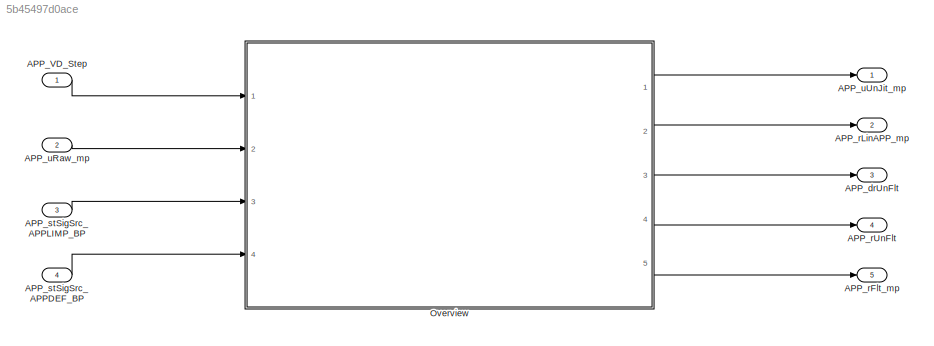
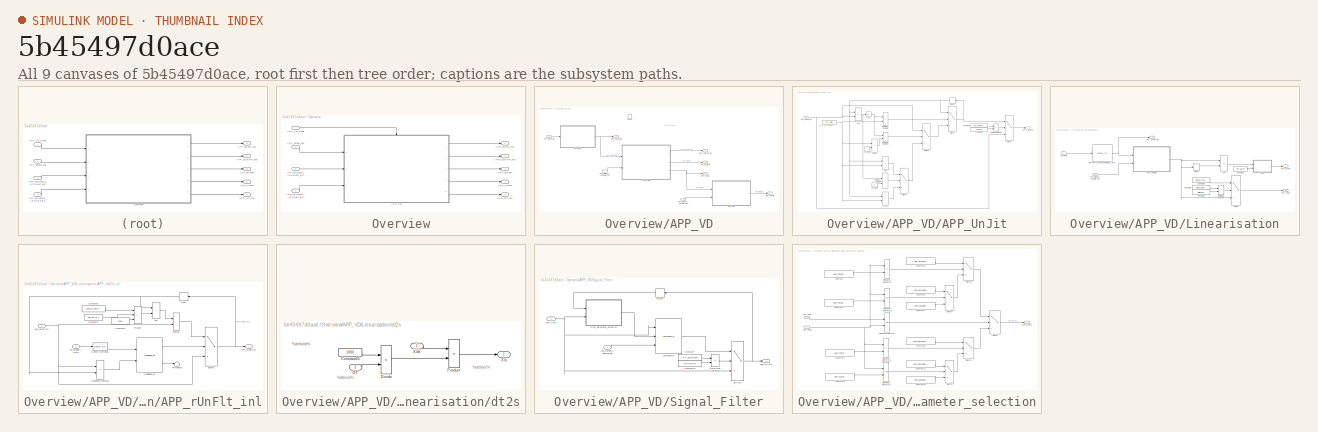
[diagram: thumbnail index - all 9 canvases of the model, root first then tree order]
MODEL slx_5b45497d0ace
KIND model
CONFIG AbsTol = auto
CONFIG EnableMultiTasking = off
CONFIG FixedStep = 0.001
CONFIG MaxStep = auto
CONFIG MinStep = auto
CONFIG RelTol = 1e-3
CONFIG SampleTimeConstraint = Unconstrained
CONFIG SolverName = FixedStepDiscrete
CONFIG StartTime = 0.0
CONFIG StopTime = Inf
WORKSPACE source: mxarray member
WORKSPACE APP_VD_DT = 10
BLOCK [Inport] APP_VD_Step
  OutputFunctionCall = on
BLOCK [Outport] APP_drUnFlt
  Description = Acceleration pedal position gradient of unfilterd value
  OutDataTypeStr = Percent_s
  OutMax = 200
  OutMin = -200
  Port = 3
  PortDimensions = [1 1]
  Unit = %/ms
BLOCK [Outport] APP_rFlt_mp
  Description = Acceleration pedal position filtered value
  OutDataTypeStr = Percent
  OutMax = 100
  OutMin = 0
  Port = 5
  PortDimensions = [1 1]
  Unit = %
BLOCK [Outport] APP_rLinAPP_mp
  Description = Linearisation ratio of accelerator pedal
  OutDataTypeStr = Percent
  OutMax = 100
  OutMin = 0
  Port = 2
  PortDimensions = [1 1]
  Unit = %
BLOCK [Outport] APP_rUnFlt
  Description = Unfiltered APP value
  OutDataTypeStr = Percent
  OutMax = 100
  OutMin = 0
  Port = 4
  PortDimensions = [1 1]
  Unit = %
BLOCK [Inport] APP_stSigSrc_APPDEF_BP
  Description = both the sensors are defective. Use the default value
  OutDataTypeStr = boolean
  OutMax = 1
  OutMin = 0
  Port = 4
  PortDimensions = [1 1]
BLOCK [Inport] APP_stSigSrc_APPLIMP_BP
  Description = Substitute operation active, accelerator pedal sensor value and accelerator pedal sensor increase are limited
  OutDataTypeStr = boolean
  OutMax = 1
  OutMin = 0
  Port = 3
  PortDimensions = [1 1]
BLOCK [Inport] APP_uRaw_mp
  Description = Acceleration pedal position raw value
  OutDataTypeStr = Volt_mV1
  OutMax = 5000
  OutMin = 0
  Port = 2
  PortDimensions = [1 1]
  Unit = mv
BLOCK [Outport] APP_uUnJit_mp
  Description = Acceleration pedal position unjittered value
  OutDataTypeStr = Volt_mV1
  OutMax = 5000
  OutMin = 0
  PortDimensions = [1 1]
  Unit = mv
BLOCK [SubSystem] Overview
  Ports = [4, 5]
  RequestExecContextInheritance = off
BLOCK [SubSystem] Overview/APP_VD
  Ports = [3, 5, 0, 1]
  RequestExecContextInheritance = off
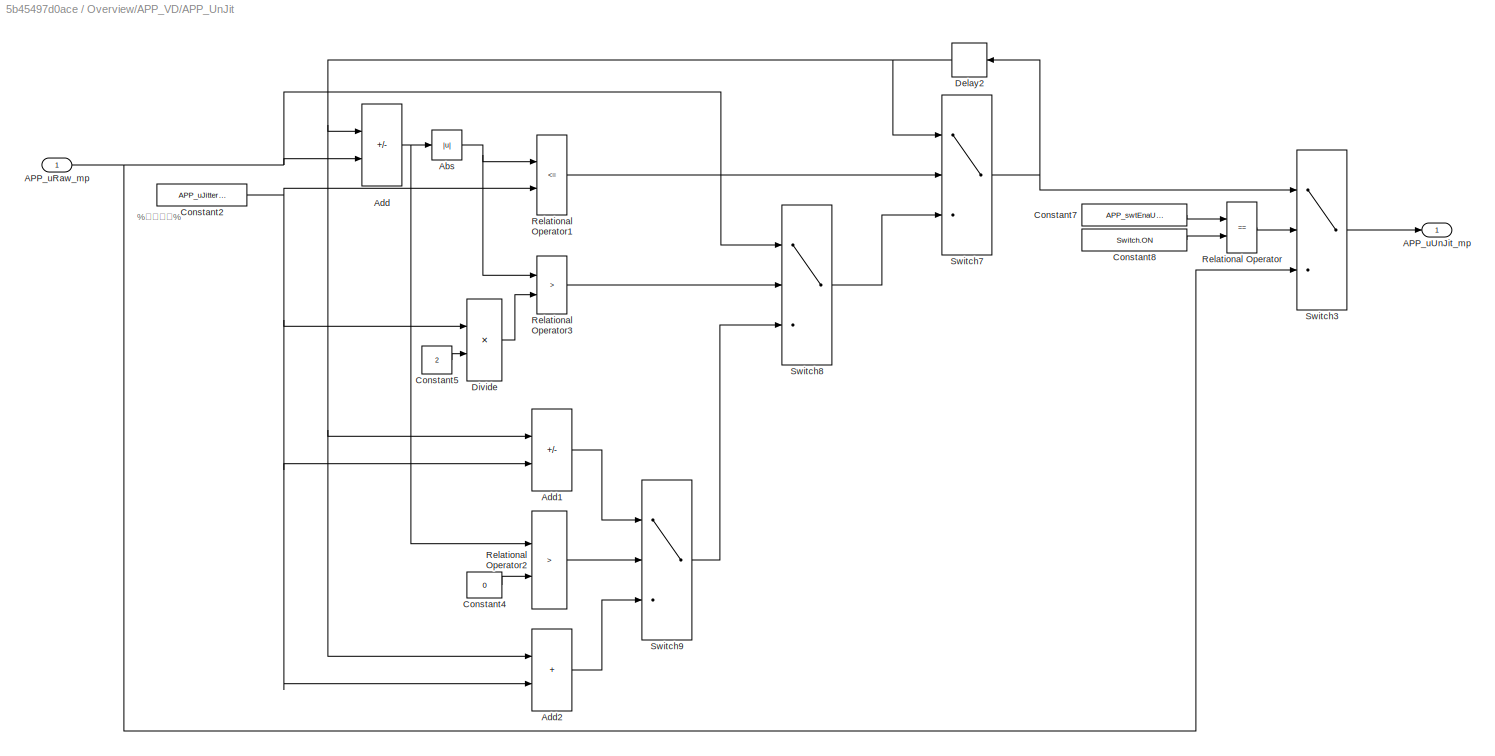
BLOCK [SubSystem] Overview/APP_VD/APP_UnJit
  Ports = [1, 1]
  RequestExecContextInheritance = off
BLOCK [Inport] Overview/APP_VD/APP_UnJit/APP_uRaw_mp
BLOCK [Outport] Overview/APP_VD/APP_UnJit/APP_uUnJit_mp
  VectorParamsAs1DForOutWhenUnconnected = off
BLOCK [Abs] Overview/APP_VD/APP_UnJit/Abs
  OutDataTypeStr = Inherit: Inherit via back propagation
  SaturateOnIntegerOverflow = off
BLOCK [Sum] Overview/APP_VD/APP_UnJit/Add
  IconShape = rectangular
  InputSameDT = on
  Inputs = +-
  Ports = [2, 1]
BLOCK [Sum] Overview/APP_VD/APP_UnJit/Add1
  IconShape = rectangular
  InputSameDT = on
  Inputs = +-
  Ports = [2, 1]
BLOCK [Sum] Overview/APP_VD/APP_UnJit/Add2
  IconShape = rectangular
  InputSameDT = on
  Ports = [2, 1]
BLOCK [Constant] Overview/APP_VD/APP_UnJit/Constant2
  Value = APP_uJitter_C
BLOCK [Constant] Overview/APP_VD/APP_UnJit/Constant4
  OutDataTypeStr = Inherit: Inherit via back propagation
  Value = 0
BLOCK [Constant] Overview/APP_VD/APP_UnJit/Constant5
  OutDataTypeStr = Inherit: Inherit via back propagation
  Value = 2
BLOCK [Constant] Overview/APP_VD/APP_UnJit/Constant7
  Value = APP_swtEnaUnJit_C
BLOCK [Constant] Overview/APP_VD/APP_UnJit/Constant8
  OutDataTypeStr = Inherit: Inherit via back propagation
  Value = Switch.ON
BLOCK [Delay] Overview/APP_VD/APP_UnJit/Delay2
  DelayLength = 1
  InitialCondition = 0
  InputPortMap = u0
  Ports = [1, 1]
BLOCK [Product] Overview/APP_VD/APP_UnJit/Divide
  Inputs = **
  OutDataTypeStr = Inherit: Inherit via back propagation
  Ports = [2, 1]
BLOCK [RelationalOperator] Overview/APP_VD/APP_UnJit/Relational Operator
  Operator = ==
  OutDataTypeStr = boolean
  Ports = [2, 1]
  RndMeth = Simplest
BLOCK [RelationalOperator] Overview/APP_VD/APP_UnJit/Relational Operator1
  Operator = <=
  OutDataTypeStr = boolean
  Ports = [2, 1]
BLOCK [RelationalOperator] Overview/APP_VD/APP_UnJit/Relational Operator2
  Operator = >
  OutDataTypeStr = boolean
  Ports = [2, 1]
BLOCK [RelationalOperator] Overview/APP_VD/APP_UnJit/Relational Operator3
  Operator = >
  OutDataTypeStr = boolean
  Ports = [2, 1]
BLOCK [Switch] Overview/APP_VD/APP_UnJit/Switch3
  Criteria = u2 ~= 0
  SaturateOnIntegerOverflow = off
BLOCK [Switch] Overview/APP_VD/APP_UnJit/Switch7
  Criteria = u2 ~= 0
  SaturateOnIntegerOverflow = off
BLOCK [Switch] Overview/APP_VD/APP_UnJit/Switch8
  Criteria = u2 ~= 0
  SaturateOnIntegerOverflow = off
BLOCK [Switch] Overview/APP_VD/APP_UnJit/Switch9
  Criteria = u2 ~= 0
  SaturateOnIntegerOverflow = off
BLOCK [Outport] Overview/APP_VD/APP_drUnFlt
  Port = 3
  Tag = %/s
  VectorParamsAs1DForOutWhenUnconnected = off
BLOCK [Outport] Overview/APP_VD/APP_rFlt_mp
  Port = 5
  Tag = %
  VectorParamsAs1DForOutWhenUnconnected = off
BLOCK [Outport] Overview/APP_VD/APP_rLinAPP_mp
  Port = 2
  Tag = %
  VectorParamsAs1DForOutWhenUnconnected = off
BLOCK [Outport] Overview/APP_VD/APP_rUnFlt
  Port = 4
  Tag = %
  VectorParamsAs1DForOutWhenUnconnected = off
BLOCK [Inport] Overview/APP_VD/APP_stSigSrc_APPDEF_BP
  Port = 3
BLOCK [Inport] Overview/APP_VD/APP_stSigSrc_APPLIMP_BP
  Port = 2
BLOCK [Inport] Overview/APP_VD/APP_uRaw_mp
  Tag = mv
BLOCK [Outport] Overview/APP_VD/APP_uUnJit_mp
  Tag = mv
  VectorParamsAs1DForOutWhenUnconnected = off
BLOCK [SubSystem] Overview/APP_VD/Linearisation
  Ports = [2, 3]
  RequestExecContextInheritance = off
BLOCK [Outport] Overview/APP_VD/Linearisation/APP_drUnFlt
  Port = 2
  Tag = %%
  VectorParamsAs1DForOutWhenUnconnected = off
BLOCK [Outport] Overview/APP_VD/Linearisation/APP_rLinAPP_mp
  Tag = %%
  VectorParamsAs1DForOutWhenUnconnected = off
BLOCK [Outport] Overview/APP_VD/Linearisation/APP_rUnFlt
  Port = 3
  Tag = %%
  VectorParamsAs1DForOutWhenUnconnected = off
BLOCK [SubSystem] Overview/APP_VD/Linearisation/APP_rUnFlt_inl
  Ports = [2, 1]
  RequestExecContextInheritance = off
BLOCK [Inport] Overview/APP_VD/Linearisation/APP_rUnFlt_inl/APP_rLinAPP_mp
BLOCK [Outport] Overview/APP_VD/Linearisation/APP_rUnFlt_inl/APP_rUnFlt_mp
  VectorParamsAs1DForOutWhenUnconnected = off
BLOCK [Inport] Overview/APP_VD/Linearisation/APP_rUnFlt_inl/APP_stSigSrc_LIMP
  Port = 2
BLOCK [Sum] Overview/APP_VD/Linearisation/APP_rUnFlt_inl/Add
  IconShape = rectangular
  InputSameDT = on
  Ports = [2, 1]
BLOCK [Constant] Overview/APP_VD/Linearisation/APP_rUnFlt_inl/Constant1
  OutDataTypeStr = Inherit: Inherit via back propagation
  Value = APP_VD_DT
BLOCK [Constant] Overview/APP_VD/Linearisation/APP_rUnFlt_inl/Constant2
  OutDataTypeStr = int16
  Value = 1000
BLOCK [Constant] Overview/APP_VD/Linearisation/APP_rUnFlt_inl/Constant6
  Value = APP_drLinRmp_C
BLOCK [Delay] Overview/APP_VD/Linearisation/APP_rUnFlt_inl/Delay
  DelayLength = 1
  InitialCondition = 0
  InputPortMap = u0
  Ports = [1, 1]
BLOCK [Reference] Overview/APP_VD/Linearisation/APP_rUnFlt_inl/Detect Decrease  REF=simulink/Logic and Bit
Operations/Detect
Decrease
  Ports = [1, 1]
  SourceBlock = simulink/Logic and Bit\nOperations/Detect\nDecrease
  SourceProductBaseCode = SL
  SourceType = Detect Decrease
BLOCK [MinMax] Overview/APP_VD/Linearisation/APP_rUnFlt_inl/MinMax
  Inputs = 2
  Ports = [2, 1]
BLOCK [Product] Overview/APP_VD/Linearisation/APP_rUnFlt_inl/Product
  Inputs = **/
  OutDataTypeStr = Inherit: Inherit via back propagation
  Ports = [3, 1]
BLOCK [Reference] Overview/APP_VD/Linearisation/APP_rUnFlt_inl/RSFilpFlop_Sp  REF=sllib/Logical symbols/RSFilpFlop_Sp  (lib defined in slx_2b0aa6d284ff)
  AttributesFormatString = State Initial=%<InitialCondition>
  Ports = [2, 2]
  SourceBlock = sllib/Logical symbols/RSFilpFlop_Sp
  SourceProductName = sllib
  SourceType = RSFlipFlop_Sp
BLOCK [RelationalOperator] Overview/APP_VD/Linearisation/APP_rUnFlt_inl/Relational Operator
  InputSameDT = off
  Operator = <=
  OutDataTypeStr = boolean
  Ports = [2, 1]
  RndMeth = Simplest
BLOCK [Switch] Overview/APP_VD/Linearisation/APP_rUnFlt_inl/Switch
  Criteria = u2 ~= 0
  SaturateOnIntegerOverflow = off
BLOCK [Terminator] Overview/APP_VD/Linearisation/APP_rUnFlt_inl/Terminator
BLOCK [Inport] Overview/APP_VD/Linearisation/APP_stSigSrc_APPLIMP_BP
  Port = 2
  Tag = -
BLOCK [Sum] Overview/APP_VD/Linearisation/Add3
  IconShape = rectangular
  InputSameDT = on
  Inputs = +-
  Ports = [2, 1]
BLOCK [Constant] Overview/APP_VD/Linearisation/Constant1
  OutDataTypeStr = Inherit: Inherit via back propagation
  Value = APP_VD_DT
BLOCK [Constant] Overview/APP_VD/Linearisation/Constant6
  Value = SigTst_swtAPP_C
BLOCK [Constant] Overview/APP_VD/Linearisation/Constant8
  Value = SigTst_rAPP_C
BLOCK [Constant] Overview/APP_VD/Linearisation/Constant9
  OutDataTypeStr = Inherit: Inherit via back propagation
  Value = Switch.ON
BLOCK [Delay] Overview/APP_VD/Linearisation/Delay
  DelayLength = 1
  InitialCondition = 0
  InputPortMap = u0
  Ports = [1, 1]
BLOCK [Lookup_n-D] Overview/APP_VD/Linearisation/MoFAPP_rLinAPPCURCalMsgA_CUR
  BeginIndexSearchUsingPreviousIndexResult = on
  BreakpointsForDimension1 = MoFAPP_rLinAPPCURCalMsgA_CURX
  ExtrapMethod = Clip
  IndexSearchMethod = Linear search
  InputPortMap = u0
  InputSameDT = off
  InternalRulePriority = Speed
  NumberOfTableDimensions = 1
  OutDataTypeStr = Inherit: Inherit via back propagation
  Ports = [1, 1]
  SaturateOnIntegerOverflow = on
  Table = MoFAPP_rLinAPPCURCalMsgA_CUR
  UseLastTableValue = on
  UseOneInputPortForAllInputData = on
BLOCK [RelationalOperator] Overview/APP_VD/Linearisation/Relational Operator4
  Operator = ==
  OutDataTypeStr = boolean
  Ports = [2, 1]
  RndMeth = Simplest
BLOCK [Switch] Overview/APP_VD/Linearisation/Switch
  Criteria = u2 ~= 0
  SaturateOnIntegerOverflow = off
BLOCK [SubSystem] Overview/APP_VD/Linearisation/dt2s
  Ports = [2, 1]
  RequestExecContextInheritance = off
BLOCK [Constant] Overview/APP_VD/Linearisation/dt2s/Constant21
  OutDataTypeStr = int16
  Value = 1000
BLOCK [Inport] Overview/APP_VD/Linearisation/dt2s/DT
  Port = 2
BLOCK [Product] Overview/APP_VD/Linearisation/dt2s/Divide
  Inputs = */
  OutDataTypeStr = int16
  Ports = [2, 1]
  RndMeth = Round
  SaturateOnIntegerOverflow = on
BLOCK [Product] Overview/APP_VD/Linearisation/dt2s/Product
  OutDataTypeStr = Inherit: Inherit via back propagation
  Ports = [2, 1]
  RndMeth = Round
  SaturateOnIntegerOverflow = on
BLOCK [Inport] Overview/APP_VD/Linearisation/dt2s/X//dt
BLOCK [Outport] Overview/APP_VD/Linearisation/dt2s/X//s
  VectorParamsAs1DForOutWhenUnconnected = off
BLOCK [Inport] Overview/APP_VD/Linearisation/uUnJit_mp
BLOCK [SubSystem] Overview/APP_VD/Signal_Filter
  Ports = [2, 1]
  RequestExecContextInheritance = off
BLOCK [Outport] Overview/APP_VD/Signal_Filter/APP_rFlt_mp
  Tag = %%
  VectorParamsAs1DForOutWhenUnconnected = off
BLOCK [Inport] Overview/APP_VD/Signal_Filter/APP_rUnFlt
BLOCK [Inport] Overview/APP_VD/Signal_Filter/APP_stSigSrc_APPDEF_BP
  Port = 2
  Tag = -
BLOCK [Constant] Overview/APP_VD/Signal_Filter/Constant10
  OutDataTypeStr = Inherit: Inherit via back propagation
  Value = Switch.ON
BLOCK [Constant] Overview/APP_VD/Signal_Filter/Constant7
  Value = APP_swtEnaFlt_C
BLOCK [Delay] Overview/APP_VD/Signal_Filter/Delay1
  DelayLength = 1
  InitialCondition = 0
  InputPortMap = u0
  Ports = [1, 1]
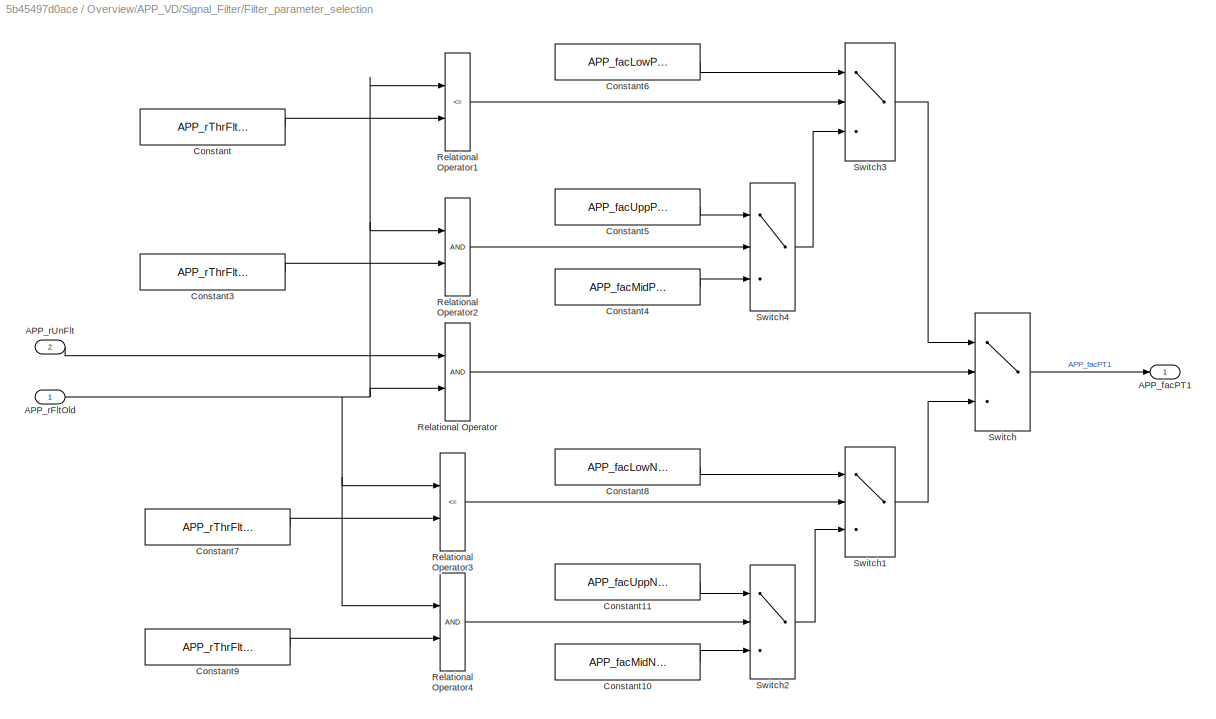
BLOCK [SubSystem] Overview/APP_VD/Signal_Filter/Filter_parameter_selection
  Ports = [2, 1]
  RequestExecContextInheritance = off
BLOCK [Outport] Overview/APP_VD/Signal_Filter/Filter_parameter_selection/APP_facPT1
  VectorParamsAs1DForOutWhenUnconnected = off
BLOCK [Inport] Overview/APP_VD/Signal_Filter/Filter_parameter_selection/APP_rFltOld
BLOCK [Inport] Overview/APP_VD/Signal_Filter/Filter_parameter_selection/APP_rUnFlt
  Port = 2
BLOCK [Constant] Overview/APP_VD/Signal_Filter/Filter_parameter_selection/Constant
  Value = APP_rThrFltLowPos_C
BLOCK [Constant] Overview/APP_VD/Signal_Filter/Filter_parameter_selection/Constant10
  Value = APP_facMidNegPT1_C
BLOCK [Constant] Overview/APP_VD/Signal_Filter/Filter_parameter_selection/Constant11
  Value = APP_facUppNegPT1_C
BLOCK [Constant] Overview/APP_VD/Signal_Filter/Filter_parameter_selection/Constant3
  Value = APP_rThrFltMidPos_C
BLOCK [Constant] Overview/APP_VD/Signal_Filter/Filter_parameter_selection/Constant4
  Value = APP_facMidPosPT1_C
BLOCK [Constant] Overview/APP_VD/Signal_Filter/Filter_parameter_selection/Constant5
  Value = APP_facUppPosPT1_C
BLOCK [Constant] Overview/APP_VD/Signal_Filter/Filter_parameter_selection/Constant6
  Value = APP_facLowPosPT1_C
BLOCK [Constant] Overview/APP_VD/Signal_Filter/Filter_parameter_selection/Constant7
  Value = APP_rThrFltLowNeg_C
BLOCK [Constant] Overview/APP_VD/Signal_Filter/Filter_parameter_selection/Constant8
  Value = APP_facLowNegPT1_C
BLOCK [Constant] Overview/APP_VD/Signal_Filter/Filter_parameter_selection/Constant9
  Value = APP_rThrFltMidNeg_C
BLOCK [RelationalOperator] Overview/APP_VD/Signal_Filter/Filter_parameter_selection/Relational Operator
  InputSameDT = off
  OutDataTypeStr = boolean
  Ports = [2, 1]
BLOCK [RelationalOperator] Overview/APP_VD/Signal_Filter/Filter_parameter_selection/Relational Operator1
  InputSameDT = off
  Operator = <=
  OutDataTypeStr = boolean
  Ports = [2, 1]
BLOCK [RelationalOperator] Overview/APP_VD/Signal_Filter/Filter_parameter_selection/Relational Operator2
  InputSameDT = off
  OutDataTypeStr = boolean
  Ports = [2, 1]
BLOCK [RelationalOperator] Overview/APP_VD/Signal_Filter/Filter_parameter_selection/Relational Operator3
  InputSameDT = off
  Operator = <=
  OutDataTypeStr = boolean
  Ports = [2, 1]
BLOCK [RelationalOperator] Overview/APP_VD/Signal_Filter/Filter_parameter_selection/Relational Operator4
  InputSameDT = off
  OutDataTypeStr = boolean
  Ports = [2, 1]
BLOCK [Switch] Overview/APP_VD/Signal_Filter/Filter_parameter_selection/Switch
  Criteria = u2 ~= 0
  SaturateOnIntegerOverflow = off
  Threshold = 1
BLOCK [Switch] Overview/APP_VD/Signal_Filter/Filter_parameter_selection/Switch1
  Criteria = u2 ~= 0
  SaturateOnIntegerOverflow = off
  Threshold = 1
BLOCK [Switch] Overview/APP_VD/Signal_Filter/Filter_parameter_selection/Switch2
  Criteria = u2 ~= 0
  SaturateOnIntegerOverflow = off
  Threshold = 1
BLOCK [Switch] Overview/APP_VD/Signal_Filter/Filter_parameter_selection/Switch3
  Criteria = u2 ~= 0
  SaturateOnIntegerOverflow = off
  Threshold = 1
BLOCK [Switch] Overview/APP_VD/Signal_Filter/Filter_parameter_selection/Switch4
  Criteria = u2 ~= 0
  SaturateOnIntegerOverflow = off
  Threshold = 1
BLOCK [Reference] Overview/APP_VD/Signal_Filter/LowPassK_R  REF=sllib/Transfer Functions/LowPassK_R  (lib defined in slx_2b0aa6d284ff)
  Ports = [3, 1]
  SourceBlock = sllib/Transfer Functions/LowPassK_R
  SourceProductName = sllib
  SourceType = LowPassK
BLOCK [RelationalOperator] Overview/APP_VD/Signal_Filter/Relational Operator5
  Operator = ==
  OutDataTypeStr = boolean
  Ports = [2, 1]
  RndMeth = Simplest
BLOCK [Switch] Overview/APP_VD/Signal_Filter/Switch1
  Criteria = u2 ~= 0
  SaturateOnIntegerOverflow = off
BLOCK [TriggerPort] Overview/APP_VD/Trigger
  PortDimensions = 1
  Ports = []
  StatesWhenEnabling = held
  TriggerType = function-call
  VariantControl = Variant
BLOCK [Inport] Overview/APP_VD_Step
BLOCK [Outport] Overview/APP_drUnFlt
  Port = 3
  VectorParamsAs1DForOutWhenUnconnected = off
BLOCK [Outport] Overview/APP_rFlt_mp
  Port = 5
  VectorParamsAs1DForOutWhenUnconnected = off
BLOCK [Outport] Overview/APP_rLinAPP_mp
  Port = 2
  VectorParamsAs1DForOutWhenUnconnected = off
BLOCK [Outport] Overview/APP_rUnFlt
  Port = 4
  VectorParamsAs1DForOutWhenUnconnected = off
BLOCK [Inport] Overview/APP_stSigSrc_APPDEF_BP
  Port = 4
BLOCK [Inport] Overview/APP_stSigSrc_APPLIMP_BP
  Port = 3
BLOCK [Inport] Overview/APP_uRaw_mp
  Port = 2
BLOCK [Outport] Overview/APP_uUnJit_mp
  VectorParamsAs1DForOutWhenUnconnected = off
ANNOTATION Overview/APP_VD: %踏板信号获取和滤波%
ANNOTATION Overview/APP_VD/APP_UnJit: %振动阀值%
ANNOTATION Overview/APP_VD/Linearisation/dt2s: %delta/dt%
ANNOTATION Overview/APP_VD/Linearisation/dt2s: %delta/s%
ANNOTATION Overview/APP_VD/Linearisation/dt2s: %dt(ms)%
LINE APP_VD_Step:1 -> Overview:1
LINE APP_stSigSrc_APPDEF_BP:1 -> Overview:4
LINE APP_stSigSrc_APPLIMP_BP:1 -> Overview:3
LINE APP_uRaw_mp:1 -> Overview:2
NET Overview/APP_VD/APP_UnJit/APP_uRaw_mp:1 -> Overview/APP_VD/APP_UnJit/Add:2, Overview/APP_VD/APP_UnJit/Switch3:3, Overview/APP_VD/APP_UnJit/Switch8:1
NET Overview/APP_VD/APP_UnJit/Abs:1 -> Overview/APP_VD/APP_UnJit/Relational Operator1:1, Overview/APP_VD/APP_UnJit/Relational Operator3:1
LINE Overview/APP_VD/APP_UnJit/Add1:1 -> Overview/APP_VD/APP_UnJit/Switch9:1
LINE Overview/APP_VD/APP_UnJit/Add2:1 -> Overview/APP_VD/APP_UnJit/Switch9:3
NET Overview/APP_VD/APP_UnJit/Add:1 -> Overview/APP_VD/APP_UnJit/Abs:1, Overview/APP_VD/APP_UnJit/Relational Operator2:1
NET Overview/APP_VD/APP_UnJit/Constant2:1 -> Overview/APP_VD/APP_UnJit/Add1:2, Overview/APP_VD/APP_UnJit/Add2:2, Overview/APP_VD/APP_UnJit/Divide:1, Overview/APP_VD/APP_UnJit/Relational Operator1:2
LINE Overview/APP_VD/APP_UnJit/Constant4:1 -> Overview/APP_VD/APP_UnJit/Relational Operator2:2
LINE Overview/APP_VD/APP_UnJit/Constant5:1 -> Overview/APP_VD/APP_UnJit/Divide:2
LINE Overview/APP_VD/APP_UnJit/Constant7:1 -> Overview/APP_VD/APP_UnJit/Relational Operator:1
LINE Overview/APP_VD/APP_UnJit/Constant8:1 -> Overview/APP_VD/APP_UnJit/Relational Operator:2
NET Overview/APP_VD/APP_UnJit/Delay2:1 -> Overview/APP_VD/APP_UnJit/Add1:1, Overview/APP_VD/APP_UnJit/Add2:1, Overview/APP_VD/APP_UnJit/Add:1, Overview/APP_VD/APP_UnJit/Switch7:1
LINE Overview/APP_VD/APP_UnJit/Divide:1 -> Overview/APP_VD/APP_UnJit/Relational Operator3:2
LINE Overview/APP_VD/APP_UnJit/Relational Operator1:1 -> Overview/APP_VD/APP_UnJit/Switch7:2
LINE Overview/APP_VD/APP_UnJit/Relational Operator2:1 -> Overview/APP_VD/APP_UnJit/Switch9:2
LINE Overview/APP_VD/APP_UnJit/Relational Operator3:1 -> Overview/APP_VD/APP_UnJit/Switch8:2
LINE Overview/APP_VD/APP_UnJit/Relational Operator:1 -> Overview/APP_VD/APP_UnJit/Switch3:2
LINE Overview/APP_VD/APP_UnJit/Switch3:1 -> Overview/APP_VD/APP_UnJit/APP_uUnJit_mp:1
NET Overview/APP_VD/APP_UnJit/Switch7:1 -> Overview/APP_VD/APP_UnJit/Delay2:1, Overview/APP_VD/APP_UnJit/Switch3:1
LINE Overview/APP_VD/APP_UnJit/Switch8:1 -> Overview/APP_VD/APP_UnJit/Switch7:3
LINE Overview/APP_VD/APP_UnJit/Switch9:1 -> Overview/APP_VD/APP_UnJit/Switch8:3
NET Overview/APP_VD/APP_UnJit:1 -> Overview/APP_VD/APP_uUnJit_mp:1, Overview/APP_VD/Linearisation:1
LINE Overview/APP_VD/APP_stSigSrc_APPDEF_BP:1 -> Overview/APP_VD/Signal_Filter:2
LINE Overview/APP_VD/APP_stSigSrc_APPLIMP_BP:1 -> Overview/APP_VD/Linearisation:2
LINE Overview/APP_VD/APP_uRaw_mp:1 -> Overview/APP_VD/APP_UnJit:1
NET Overview/APP_VD/Linearisation/APP_rUnFlt_inl/APP_rLinAPP_mp:1 -> Overview/APP_VD/Linearisation/APP_rUnFlt_inl/MinMax:2, Overview/APP_VD/Linearisation/APP_rUnFlt_inl/Relational Operator:1, Overview/APP_VD/Linearisation/APP_rUnFlt_inl/Switch:3
LINE Overview/APP_VD/Linearisation/APP_rUnFlt_inl/APP_stSigSrc_LIMP:1 -> Overview/APP_VD/Linearisation/APP_rUnFlt_inl/Detect Decrease:1
LINE Overview/APP_VD/Linearisation/APP_rUnFlt_inl/Add:1 -> Overview/APP_VD/Linearisation/APP_rUnFlt_inl/MinMax:1
LINE Overview/APP_VD/Linearisation/APP_rUnFlt_inl/Constant1:1 -> Overview/APP_VD/Linearisation/APP_rUnFlt_inl/Product:2
LINE Overview/APP_VD/Linearisation/APP_rUnFlt_inl/Constant2:1 -> Overview/APP_VD/Linearisation/APP_rUnFlt_inl/Product:3
LINE Overview/APP_VD/Linearisation/APP_rUnFlt_inl/Constant6:1 -> Overview/APP_VD/Linearisation/APP_rUnFlt_inl/Product:1
NET Overview/APP_VD/Linearisation/APP_rUnFlt_inl/Delay:1 -> Overview/APP_VD/Linearisation/APP_rUnFlt_inl/Add:1, Overview/APP_VD/Linearisation/APP_rUnFlt_inl/Relational Operator:2
LINE Overview/APP_VD/Linearisation/APP_rUnFlt_inl/Detect Decrease:1 -> Overview/APP_VD/Linearisation/APP_rUnFlt_inl/RSFilpFlop_Sp:1
LINE Overview/APP_VD/Linearisation/APP_rUnFlt_inl/MinMax:1 -> Overview/APP_VD/Linearisation/APP_rUnFlt_inl/Switch:1
LINE Overview/APP_VD/Linearisation/APP_rUnFlt_inl/Product:1 -> Overview/APP_VD/Linearisation/APP_rUnFlt_inl/Add:2
LINE Overview/APP_VD/Linearisation/APP_rUnFlt_inl/RSFilpFlop_Sp:1 -> Overview/APP_VD/Linearisation/APP_rUnFlt_inl/Switch:2
LINE Overview/APP_VD/Linearisation/APP_rUnFlt_inl/RSFilpFlop_Sp:2 -> Overview/APP_VD/Linearisation/APP_rUnFlt_inl/Terminator:1
LINE Overview/APP_VD/Linearisation/APP_rUnFlt_inl/Relational Operator:1 -> Overview/APP_VD/Linearisation/APP_rUnFlt_inl/RSFilpFlop_Sp:2
NET Overview/APP_VD/Linearisation/APP_rUnFlt_inl/Switch:1 -> Overview/APP_VD/Linearisation/APP_rUnFlt_inl/APP_rUnFlt_mp:1, Overview/APP_VD/Linearisation/APP_rUnFlt_inl/Delay:1
NET Overview/APP_VD/Linearisation/APP_rUnFlt_inl:1 -> Overview/APP_VD/Linearisation/Add3:1, Overview/APP_VD/Linearisation/Delay:1, Overview/APP_VD/Linearisation/Switch:3
LINE Overview/APP_VD/Linearisation/APP_stSigSrc_APPLIMP_BP:1 -> Overview/APP_VD/Linearisation/APP_rUnFlt_inl:2
LINE Overview/APP_VD/Linearisation/Add3:1 -> Overview/APP_VD/Linearisation/dt2s:1
LINE Overview/APP_VD/Linearisation/Constant1:1 -> Overview/APP_VD/Linearisation/dt2s:2
LINE Overview/APP_VD/Linearisation/Constant6:1 -> Overview/APP_VD/Linearisation/Relational Operator4:1
LINE Overview/APP_VD/Linearisation/Constant8:1 -> Overview/APP_VD/Linearisation/Switch:1
LINE Overview/APP_VD/Linearisation/Constant9:1 -> Overview/APP_VD/Linearisation/Relational Operator4:2
LINE Overview/APP_VD/Linearisation/Delay:1 -> Overview/APP_VD/Linearisation/Add3:2
NET Overview/APP_VD/Linearisation/MoFAPP_rLinAPPCURCalMsgA_CUR:1 -> Overview/APP_VD/Linearisation/APP_rLinAPP_mp:1, Overview/APP_VD/Linearisation/APP_rUnFlt_inl:1
LINE Overview/APP_VD/Linearisation/Relational Operator4:1 -> Overview/APP_VD/Linearisation/Switch:2
LINE Overview/APP_VD/Linearisation/Switch:1 -> Overview/APP_VD/Linearisation/APP_rUnFlt:1
LINE Overview/APP_VD/Linearisation/dt2s/Constant21:1 -> Overview/APP_VD/Linearisation/dt2s/Divide:1
LINE Overview/APP_VD/Linearisation/dt2s/DT:1 -> Overview/APP_VD/Linearisation/dt2s/Divide:2
LINE Overview/APP_VD/Linearisation/dt2s/Divide:1 -> Overview/APP_VD/Linearisation/dt2s/Product:2
LINE Overview/APP_VD/Linearisation/dt2s/Product:1 -> Overview/APP_VD/Linearisation/dt2s/X//s:1
LINE Overview/APP_VD/Linearisation/dt2s/X//dt:1 -> Overview/APP_VD/Linearisation/dt2s/Product:1
LINE Overview/APP_VD/Linearisation/dt2s:1 -> Overview/APP_VD/Linearisation/APP_drUnFlt:1
LINE Overview/APP_VD/Linearisation/uUnJit_mp:1 -> Overview/APP_VD/Linearisation/MoFAPP_rLinAPPCURCalMsgA_CUR:1
LINE Overview/APP_VD/Linearisation:1 -> Overview/APP_VD/APP_rLinAPP_mp:1
LINE Overview/APP_VD/Linearisation:2 -> Overview/APP_VD/APP_drUnFlt:1
NET Overview/APP_VD/Linearisation:3 -> Overview/APP_VD/APP_rUnFlt:1, Overview/APP_VD/Signal_Filter:1
NET Overview/APP_VD/Signal_Filter/APP_rUnFlt:1 -> Overview/APP_VD/Signal_Filter/Filter_parameter_selection:2, Overview/APP_VD/Signal_Filter/LowPassK_R:1, Overview/APP_VD/Signal_Filter/Switch1:3
LINE Overview/APP_VD/Signal_Filter/APP_stSigSrc_APPDEF_BP:1 -> Overview/APP_VD/Signal_Filter/LowPassK_R:3
LINE Overview/APP_VD/Signal_Filter/Constant10:1 -> Overview/APP_VD/Signal_Filter/Relational Operator5:2
LINE Overview/APP_VD/Signal_Filter/Constant7:1 -> Overview/APP_VD/Signal_Filter/Relational Operator5:1
LINE Overview/APP_VD/Signal_Filter/Delay1:1 -> Overview/APP_VD/Signal_Filter/Filter_parameter_selection:1
NET Overview/APP_VD/Signal_Filter/Filter_parameter_selection/APP_rFltOld:1 -> Overview/APP_VD/Signal_Filter/Filter_parameter_selection/Relational Operator1:1, Overview/APP_VD/Signal_Filter/Filter_parameter_selection/Relational Operator2:1, Overview/APP_VD/Signal_Filter/Filter_parameter_selection/Relational Operator3:1, Overview/APP_VD/Signal_Filter/Filter_parameter_selection/Relational Operator4:1, Overview/APP_VD/Signal_Filter/Filter_parameter_selection/Relational Operator:2
LINE Overview/APP_VD/Signal_Filter/Filter_parameter_selection/APP_rUnFlt:1 -> Overview/APP_VD/Signal_Filter/Filter_parameter_selection/Relational Operator:1
LINE Overview/APP_VD/Signal_Filter/Filter_parameter_selection/Constant10:1 -> Overview/APP_VD/Signal_Filter/Filter_parameter_selection/Switch2:3
LINE Overview/APP_VD/Signal_Filter/Filter_parameter_selection/Constant11:1 -> Overview/APP_VD/Signal_Filter/Filter_parameter_selection/Switch2:1
LINE Overview/APP_VD/Signal_Filter/Filter_parameter_selection/Constant3:1 -> Overview/APP_VD/Signal_Filter/Filter_parameter_selection/Relational Operator2:2
LINE Overview/APP_VD/Signal_Filter/Filter_parameter_selection/Constant4:1 -> Overview/APP_VD/Signal_Filter/Filter_parameter_selection/Switch4:3
LINE Overview/APP_VD/Signal_Filter/Filter_parameter_selection/Constant5:1 -> Overview/APP_VD/Signal_Filter/Filter_parameter_selection/Switch4:1
LINE Overview/APP_VD/Signal_Filter/Filter_parameter_selection/Constant6:1 -> Overview/APP_VD/Signal_Filter/Filter_parameter_selection/Switch3:1
LINE Overview/APP_VD/Signal_Filter/Filter_parameter_selection/Constant7:1 -> Overview/APP_VD/Signal_Filter/Filter_parameter_selection/Relational Operator3:2
LINE Overview/APP_VD/Signal_Filter/Filter_parameter_selection/Constant8:1 -> Overview/APP_VD/Signal_Filter/Filter_parameter_selection/Switch1:1
LINE Overview/APP_VD/Signal_Filter/Filter_parameter_selection/Constant9:1 -> Overview/APP_VD/Signal_Filter/Filter_parameter_selection/Relational Operator4:2
LINE Overview/APP_VD/Signal_Filter/Filter_parameter_selection/Constant:1 -> Overview/APP_VD/Signal_Filter/Filter_parameter_selection/Relational Operator1:2
LINE Overview/APP_VD/Signal_Filter/Filter_parameter_selection/Relational Operator1:1 -> Overview/APP_VD/Signal_Filter/Filter_parameter_selection/Switch3:2
LINE Overview/APP_VD/Signal_Filter/Filter_parameter_selection/Relational Operator2:1 -> Overview/APP_VD/Signal_Filter/Filter_parameter_selection/Switch4:2
LINE Overview/APP_VD/Signal_Filter/Filter_parameter_selection/Relational Operator3:1 -> Overview/APP_VD/Signal_Filter/Filter_parameter_selection/Switch1:2
LINE Overview/APP_VD/Signal_Filter/Filter_parameter_selection/Relational Operator4:1 -> Overview/APP_VD/Signal_Filter/Filter_parameter_selection/Switch2:2
LINE Overview/APP_VD/Signal_Filter/Filter_parameter_selection/Relational Operator:1 -> Overview/APP_VD/Signal_Filter/Filter_parameter_selection/Switch:2
LINE Overview/APP_VD/Signal_Filter/Filter_parameter_selection/Switch1:1 -> Overview/APP_VD/Signal_Filter/Filter_parameter_selection/Switch:3
LINE Overview/APP_VD/Signal_Filter/Filter_parameter_selection/Switch2:1 -> Overview/APP_VD/Signal_Filter/Filter_parameter_selection/Switch1:3
LINE Overview/APP_VD/Signal_Filter/Filter_parameter_selection/Switch3:1 -> Overview/APP_VD/Signal_Filter/Filter_parameter_selection/Switch:1
LINE Overview/APP_VD/Signal_Filter/Filter_parameter_selection/Switch4:1 -> Overview/APP_VD/Signal_Filter/Filter_parameter_selection/Switch3:3
LINE Overview/APP_VD/Signal_Filter/Filter_parameter_selection/Switch:1 -> Overview/APP_VD/Signal_Filter/Filter_parameter_selection/APP_facPT1:1
LINE Overview/APP_VD/Signal_Filter/Filter_parameter_selection:1 -> Overview/APP_VD/Signal_Filter/LowPassK_R:2
LINE Overview/APP_VD/Signal_Filter/LowPassK_R:1 -> Overview/APP_VD/Signal_Filter/Switch1:1
LINE Overview/APP_VD/Signal_Filter/Relational Operator5:1 -> Overview/APP_VD/Signal_Filter/Switch1:2
NET Overview/APP_VD/Signal_Filter/Switch1:1 -> Overview/APP_VD/Signal_Filter/APP_rFlt_mp:1, Overview/APP_VD/Signal_Filter/Delay1:1
LINE Overview/APP_VD/Signal_Filter:1 -> Overview/APP_VD/APP_rFlt_mp:1
LINE Overview/APP_VD:1 -> Overview/APP_uUnJit_mp:1
LINE Overview/APP_VD:2 -> Overview/APP_rLinAPP_mp:1
LINE Overview/APP_VD:3 -> Overview/APP_drUnFlt:1
LINE Overview/APP_VD:4 -> Overview/APP_rUnFlt:1
LINE Overview/APP_VD:5 -> Overview/APP_rFlt_mp:1
LINE Overview/APP_VD_Step:1 -> Overview/APP_VD:trigger
LINE Overview/APP_stSigSrc_APPDEF_BP:1 -> Overview/APP_VD:3
LINE Overview/APP_stSigSrc_APPLIMP_BP:1 -> Overview/APP_VD:2
LINE Overview/APP_uRaw_mp:1 -> Overview/APP_VD:1
LINE Overview:1 -> APP_uUnJit_mp:1
LINE Overview:2 -> APP_rLinAPP_mp:1
LINE Overview:3 -> APP_drUnFlt:1
LINE Overview:4 -> APP_rUnFlt:1
LINE Overview:5 -> APP_rFlt_mp:1
note: NET lines group one-source signal fan-out (src -> all destinations, sorted); 1:1 wires keep LINE
